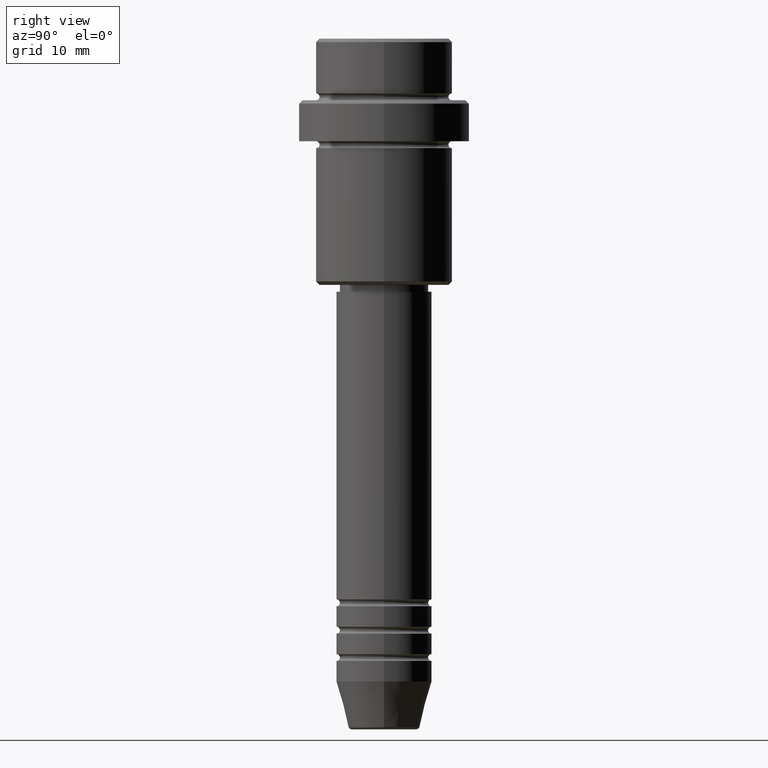
[diagram: clean part render]
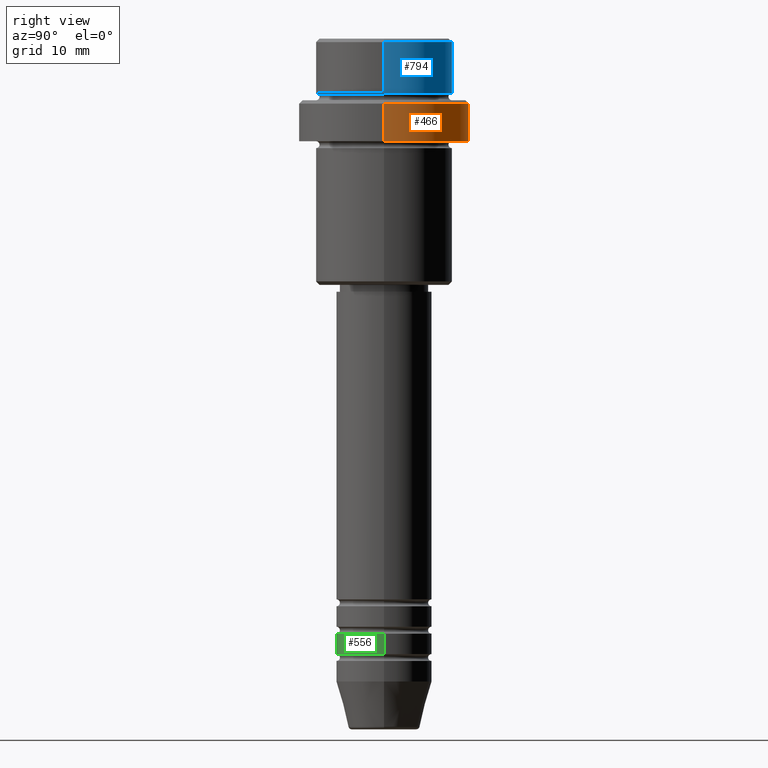
[diagram: same view with three faces highlighted in distinct colors, each labeled with its STEP entity id]
A machine part, right view with three faces highlighted in distinct colors.
Their STEP definitions:

[orange] entity #466 — the highlighted cylindrical surface (partial cylindrical patch) has radius 12.5 mm, axis along (-0, -0, 1).
#17 = ORIENTED_EDGE ( 'NONE', *, *, #79, .T. ) ;
#20 = EDGE_CURVE ( 'NONE', #1074, #152, #86, .T. ) ;
#79 = EDGE_CURVE ( 'NONE', #944, #1074, #1296, .T. ) ;
#86 = LINE ( 'NONE', #947, #1020 ) ;
#126 = ORIENTED_EDGE ( 'NONE', *, *, #20, .T. ) ;
#152 = VERTEX_POINT ( 'NONE', #215 ) ;
#153 = AXIS2_PLACEMENT_3D ( 'NONE', #849, #202, #858 ) ;
#161 = EDGE_CURVE ( 'NONE', #152, #1292, #1064, .T. ) ;
#202 = DIRECTION ( 'NONE',  ( -0.000000000000000000, -0.000000000000000000, 1.000000000000000000 ) ) ;
#215 = CARTESIAN_POINT ( 'NONE',  ( -12.50000000000000000, 1.530808498934191521E-15, -9.500000000000005329 ) ) ;
#244 = AXIS2_PLACEMENT_3D ( 'NONE', #1084, #545, #439 ) ;
#249 = EDGE_LOOP ( 'NONE', ( #17, #126, #769, #956 ) ) ;
#307 = DIRECTION ( 'NONE',  ( -0.000000000000000000, -0.000000000000000000, 1.000000000000000000 ) ) ;
#439 = DIRECTION ( 'NONE',  ( 1.000000000000000000, 0.000000000000000000, 0.000000000000000000 ) ) ;
#466 = ADVANCED_FACE ( 'NONE', ( #1368 ), #840, .T. ) ;
#504 = CARTESIAN_POINT ( 'NONE',  ( 12.50000000000000000, 0.000000000000000000, -9.500000000000005329 ) ) ;
#545 = DIRECTION ( 'NONE',  ( 0.000000000000000000, 0.000000000000000000, -1.000000000000000000 ) ) ;
#600 = DIRECTION ( 'NONE',  ( -0.000000000000000000, -0.000000000000000000, 1.000000000000000000 ) ) ;
#607 = AXIS2_PLACEMENT_3D ( 'NONE', #816, #307, #1416 ) ;
#620 = DIRECTION ( 'NONE',  ( -0.000000000000000000, -0.000000000000000000, 1.000000000000000000 ) ) ;
#677 = EDGE_CURVE ( 'NONE', #944, #1292, #687, .T. ) ;
#687 = LINE ( 'NONE', #1247, #1320 ) ;
#769 = ORIENTED_EDGE ( 'NONE', *, *, #161, .T. ) ;
#816 = CARTESIAN_POINT ( 'NONE',  ( 0.000000000000000000, 0.000000000000000000, 0.000000000000000000 ) ) ;
#840 = CYLINDRICAL_SURFACE ( 'NONE', #607, 12.50000000000000000 ) ;
#849 = CARTESIAN_POINT ( 'NONE',  ( 0.000000000000000000, 0.000000000000000000, -15.00000000000000000 ) ) ;
#858 = DIRECTION ( 'NONE',  ( 1.000000000000000000, 0.000000000000000000, 0.000000000000000000 ) ) ;
#944 = VERTEX_POINT ( 'NONE', #1086 ) ;
#947 = CARTESIAN_POINT ( 'NONE',  ( -12.50000000000000000, 1.530808498934191521E-15, 0.000000000000000000 ) ) ;
#956 = ORIENTED_EDGE ( 'NONE', *, *, #677, .F. ) ;
#1020 = VECTOR ( 'NONE', #620, 1000.000000000000000 ) ;
#1064 = CIRCLE ( 'NONE', #244, 12.50000000000000000 ) ;
#1072 = CARTESIAN_POINT ( 'NONE',  ( -12.50000000000000000, 1.530808498934191521E-15, -15.00000000000000000 ) ) ;
#1074 = VERTEX_POINT ( 'NONE', #1072 ) ;
#1084 = CARTESIAN_POINT ( 'NONE',  ( 0.000000000000000000, 0.000000000000000000, -9.500000000000005329 ) ) ;
#1086 = CARTESIAN_POINT ( 'NONE',  ( 12.50000000000000000, 0.000000000000000000, -15.00000000000000000 ) ) ;
#1247 = CARTESIAN_POINT ( 'NONE',  ( 12.50000000000000000, 0.000000000000000000, 0.000000000000000000 ) ) ;
#1292 = VERTEX_POINT ( 'NONE', #504 ) ;
#1296 = CIRCLE ( 'NONE', #153, 12.50000000000000000 ) ;
#1320 = VECTOR ( 'NONE', #600, 1000.000000000000000 ) ;
#1368 = FACE_OUTER_BOUND ( 'NONE', #249, .T. ) ;
#1416 = DIRECTION ( 'NONE',  ( 1.000000000000000000, 0.000000000000000000, 0.000000000000000000 ) ) ;

[blue] entity #794 — the highlighted cylindrical surface (partial cylindrical patch) has radius 10 mm, axis along (-0, -0, 1).
#9 = CARTESIAN_POINT ( 'NONE',  ( 0.000000000000000000, 0.000000000000000000, -0.4999999999999970024 ) ) ;
#144 = DIRECTION ( 'NONE',  ( -0.000000000000000000, -0.000000000000000000, 1.000000000000000000 ) ) ;
#146 = EDGE_CURVE ( 'NONE', #823, #491, #1272, .T. ) ;
#175 = CARTESIAN_POINT ( 'NONE',  ( 9.999999999999998224, 0.000000000000000000, 0.000000000000000000 ) ) ;
#205 = VECTOR ( 'NONE', #144, 1000.000000000000000 ) ;
#207 = CARTESIAN_POINT ( 'NONE',  ( -9.999999999999998224, 1.224646799147353059E-15, -0.4999999999999970024 ) ) ;
#236 = DIRECTION ( 'NONE',  ( 1.000000000000000000, 0.000000000000000000, 0.000000000000000000 ) ) ;
#296 = CIRCLE ( 'NONE', #1371, 9.999999999999998224 ) ;
#312 = LINE ( 'NONE', #175, #673 ) ;
#411 = CARTESIAN_POINT ( 'NONE',  ( 0.000000000000000000, 0.000000000000000000, 0.000000000000000000 ) ) ;
#434 = ORIENTED_EDGE ( 'NONE', *, *, #1331, .T. ) ;
#456 = AXIS2_PLACEMENT_3D ( 'NONE', #411, #1395, #1376 ) ;
#491 = VERTEX_POINT ( 'NONE', #870 ) ;
#578 = ORIENTED_EDGE ( 'NONE', *, *, #832, .F. ) ;
#596 = LINE ( 'NONE', #891, #205 ) ;
#617 = VERTEX_POINT ( 'NONE', #783 ) ;
#673 = VECTOR ( 'NONE', #730, 1000.000000000000000 ) ;
#703 = ORIENTED_EDGE ( 'NONE', *, *, #1392, .T. ) ;
#730 = DIRECTION ( 'NONE',  ( -0.000000000000000000, -0.000000000000000000, 1.000000000000000000 ) ) ;
#736 = CYLINDRICAL_SURFACE ( 'NONE', #456, 9.999999999999998224 ) ;
#783 = CARTESIAN_POINT ( 'NONE',  ( 9.999999999999998224, 0.000000000000000000, -7.999999999999998224 ) ) ;
#794 = ADVANCED_FACE ( 'NONE', ( #838 ), #736, .T. ) ;
#823 = VERTEX_POINT ( 'NONE', #207 ) ;
#832 = EDGE_CURVE ( 'NONE', #617, #491, #312, .T. ) ;
#838 = FACE_OUTER_BOUND ( 'NONE', #984, .T. ) ;
#870 = CARTESIAN_POINT ( 'NONE',  ( 9.999999999999998224, 0.000000000000000000, -0.4999999999999970024 ) ) ;
#878 = AXIS2_PLACEMENT_3D ( 'NONE', #9, #1080, #1190 ) ;
#891 = CARTESIAN_POINT ( 'NONE',  ( -9.999999999999998224, 1.224646799147353059E-15, 0.000000000000000000 ) ) ;
#922 = CARTESIAN_POINT ( 'NONE',  ( -9.999999999999998224, 1.224646799147353059E-15, -7.999999999999998224 ) ) ;
#984 = EDGE_LOOP ( 'NONE', ( #434, #703, #1097, #578 ) ) ;
#1080 = DIRECTION ( 'NONE',  ( 0.000000000000000000, 0.000000000000000000, -1.000000000000000000 ) ) ;
#1097 = ORIENTED_EDGE ( 'NONE', *, *, #146, .T. ) ;
#1099 = DIRECTION ( 'NONE',  ( -0.000000000000000000, -0.000000000000000000, 1.000000000000000000 ) ) ;
#1190 = DIRECTION ( 'NONE',  ( 1.000000000000000000, 0.000000000000000000, 0.000000000000000000 ) ) ;
#1218 = CARTESIAN_POINT ( 'NONE',  ( 0.000000000000000000, 0.000000000000000000, -7.999999999999998224 ) ) ;
#1265 = VERTEX_POINT ( 'NONE', #922 ) ;
#1272 = CIRCLE ( 'NONE', #878, 9.999999999999998224 ) ;
#1331 = EDGE_CURVE ( 'NONE', #617, #1265, #296, .T. ) ;
#1371 = AXIS2_PLACEMENT_3D ( 'NONE', #1218, #1099, #236 ) ;
#1376 = DIRECTION ( 'NONE',  ( 1.000000000000000000, 0.000000000000000000, 0.000000000000000000 ) ) ;
#1392 = EDGE_CURVE ( 'NONE', #1265, #823, #596, .T. ) ;
#1395 = DIRECTION ( 'NONE',  ( -0.000000000000000000, -0.000000000000000000, 1.000000000000000000 ) ) ;

[green] entity #556 — the highlighted cylindrical surface (partial cylindrical patch) has radius 7 mm, axis along (-0, -0, 1).
#14 = VERTEX_POINT ( 'NONE', #1370 ) ;
#58 = CARTESIAN_POINT ( 'NONE',  ( -7.000000000000000000, 8.572527594031473190E-16, 0.000000000000000000 ) ) ;
#83 = AXIS2_PLACEMENT_3D ( 'NONE', #648, #463, #104 ) ;
#96 = CARTESIAN_POINT ( 'NONE',  ( -7.000000000000000000, 8.572527594031473190E-16, -89.99999999999988631 ) ) ;
#103 = DIRECTION ( 'NONE',  ( -0.000000000000000000, -0.000000000000000000, 1.000000000000000000 ) ) ;
#104 = DIRECTION ( 'NONE',  ( 1.000000000000000000, 0.000000000000000000, 0.000000000000000000 ) ) ;
#111 = VERTEX_POINT ( 'NONE', #96 ) ;
#135 = CYLINDRICAL_SURFACE ( 'NONE', #83, 7.000000000000000000 ) ;
#166 = LINE ( 'NONE', #58, #1273 ) ;
#180 = AXIS2_PLACEMENT_3D ( 'NONE', #1154, #438, #350 ) ;
#213 = DIRECTION ( 'NONE',  ( -0.000000000000000000, -0.000000000000000000, 1.000000000000000000 ) ) ;
#347 = EDGE_CURVE ( 'NONE', #111, #1058, #1319, .T. ) ;
#350 = DIRECTION ( 'NONE',  ( 1.000000000000000000, 0.000000000000000000, 0.000000000000000000 ) ) ;
#368 = ORIENTED_EDGE ( 'NONE', *, *, #347, .T. ) ;
#438 = DIRECTION ( 'NONE',  ( -0.000000000000000000, -0.000000000000000000, 1.000000000000000000 ) ) ;
#451 = EDGE_CURVE ( 'NONE', #111, #14, #166, .T. ) ;
#463 = DIRECTION ( 'NONE',  ( -0.000000000000000000, -0.000000000000000000, 1.000000000000000000 ) ) ;
#490 = CARTESIAN_POINT ( 'NONE',  ( 0.000000000000000000, 0.000000000000000000, -89.99999999999988631 ) ) ;
#495 = DIRECTION ( 'NONE',  ( -0.000000000000000000, -0.000000000000000000, 1.000000000000000000 ) ) ;
#517 = AXIS2_PLACEMENT_3D ( 'NONE', #490, #213, #1404 ) ;
#538 = CARTESIAN_POINT ( 'NONE',  ( 7.000000000000000000, 0.000000000000000000, 0.000000000000000000 ) ) ;
#556 = ADVANCED_FACE ( 'NONE', ( #886 ), #135, .T. ) ;
#569 = ORIENTED_EDGE ( 'NONE', *, *, #894, .T. ) ;
#570 = CARTESIAN_POINT ( 'NONE',  ( 7.000000000000000000, 0.000000000000000000, -86.99999999999988631 ) ) ;
#621 = LINE ( 'NONE', #538, #1345 ) ;
#648 = CARTESIAN_POINT ( 'NONE',  ( 0.000000000000000000, 0.000000000000000000, 0.000000000000000000 ) ) ;
#834 = EDGE_LOOP ( 'NONE', ( #1115, #368, #569, #907 ) ) ;
#886 = FACE_OUTER_BOUND ( 'NONE', #834, .T. ) ;
#894 = EDGE_CURVE ( 'NONE', #1058, #1415, #621, .T. ) ;
#907 = ORIENTED_EDGE ( 'NONE', *, *, #1136, .F. ) ;
#1058 = VERTEX_POINT ( 'NONE', #1079 ) ;
#1079 = CARTESIAN_POINT ( 'NONE',  ( 7.000000000000000000, 0.000000000000000000, -89.99999999999988631 ) ) ;
#1115 = ORIENTED_EDGE ( 'NONE', *, *, #451, .F. ) ;
#1136 = EDGE_CURVE ( 'NONE', #14, #1415, #1413, .T. ) ;
#1154 = CARTESIAN_POINT ( 'NONE',  ( 0.000000000000000000, 0.000000000000000000, -86.99999999999988631 ) ) ;
#1273 = VECTOR ( 'NONE', #495, 1000.000000000000000 ) ;
#1319 = CIRCLE ( 'NONE', #517, 7.000000000000000000 ) ;
#1345 = VECTOR ( 'NONE', #103, 1000.000000000000000 ) ;
#1370 = CARTESIAN_POINT ( 'NONE',  ( -7.000000000000000000, 8.572527594031473190E-16, -86.99999999999988631 ) ) ;
#1404 = DIRECTION ( 'NONE',  ( 1.000000000000000000, 0.000000000000000000, 0.000000000000000000 ) ) ;
#1413 = CIRCLE ( 'NONE', #180, 7.000000000000000000 ) ;
#1415 = VERTEX_POINT ( 'NONE', #570 ) ;